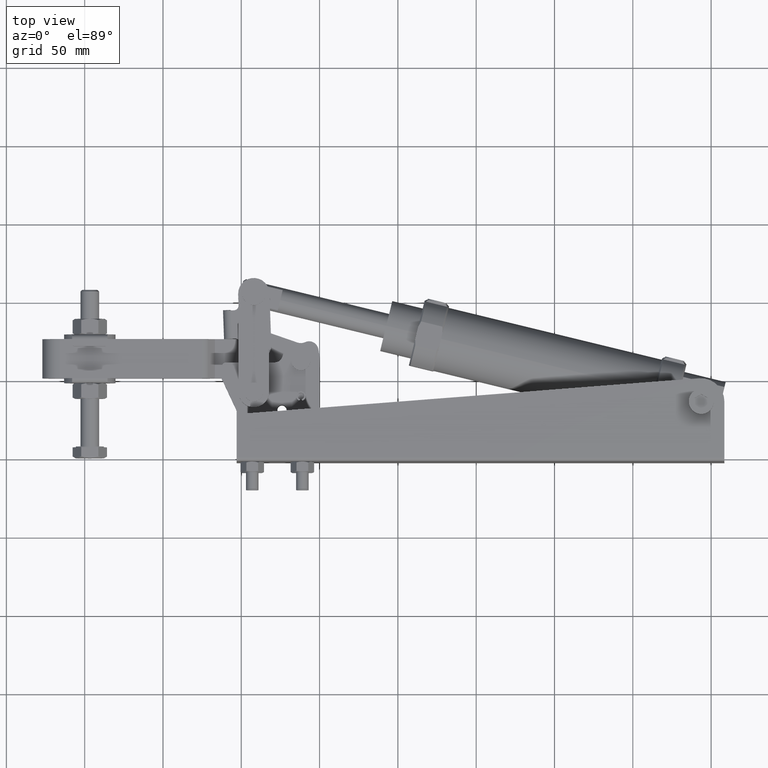
[diagram: clean part render]
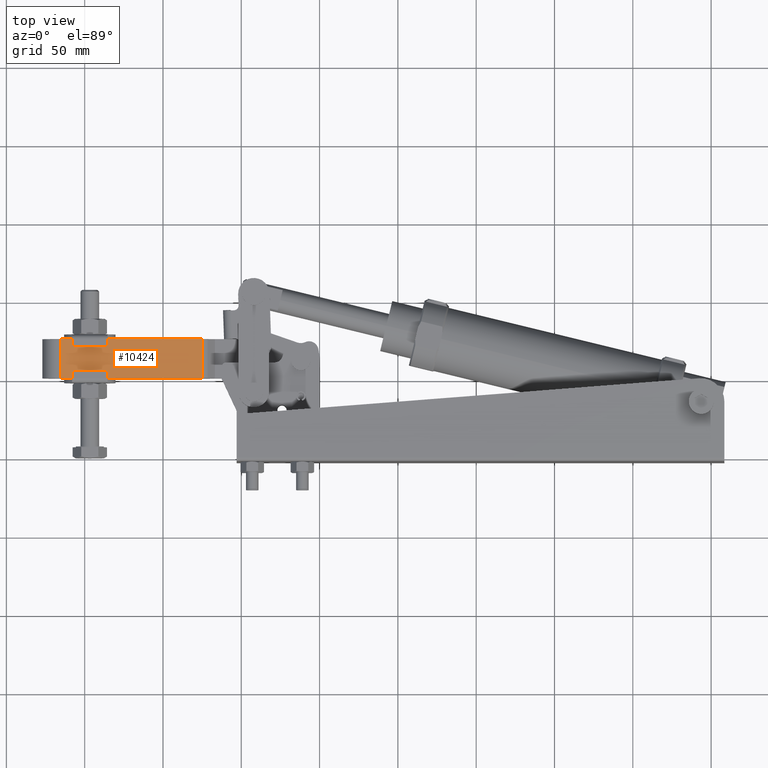
[diagram: same view with one face highlighted and labeled with its STEP entity id]
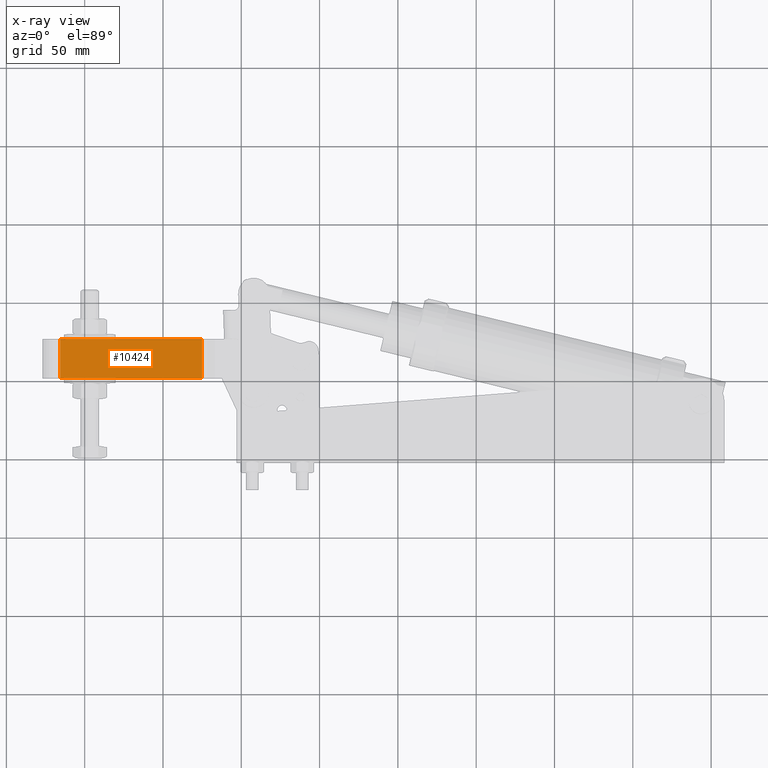
[diagram: x-ray of the same camera — body ghosted, the highlighted face saturated]
A machine part, top view. The second image highlights one B-rep face of the part: STEP entity #10424.
The next image is the same camera in x-ray: the body ghosted, the highlighted face saturated — about 0% of this face is hidden behind the body in this view.
In plain terms, the highlighted planar face has unit normal (0, 0, 1).
Its self-contained STEP definition (entity closure, byte-faithful):
#784 = ORIENTED_EDGE ( 'NONE', *, *, #6400, .F. ) ;
#1646 = VERTEX_POINT ( 'NONE', #23229 ) ;
#1776 = DIRECTION ( 'NONE',  ( 1.000000000000000000, 0.0000000000000000000, -1.495451272393799800E-016 ) ) ;
#2091 = EDGE_CURVE ( 'NONE', #9593, #23367, #4537, .T. ) ;
#3448 = DIRECTION ( 'NONE',  ( -1.000000000000000000, 0.0000000000000000000, 1.495451272393799800E-016 ) ) ;
#3763 = VECTOR ( 'NONE', #4330, 1000.000000000000000 ) ;
#4330 = DIRECTION ( 'NONE',  ( -1.000000000000000000, -0.0000000000000000000, -0.0000000000000000000 ) ) ;
#4537 = LINE ( 'NONE', #18104, #19175 ) ;
#5297 = CARTESIAN_POINT ( 'NONE',  ( -72.84999999999867300, 83.00000000000025600, 11.35000000000001600 ) ) ;
#5377 = VECTOR ( 'NONE', #17791, 1000.000000000000000 ) ;
#6400 = EDGE_CURVE ( 'NONE', #11003, #9593, #16310, .T. ) ;
#6407 = FACE_OUTER_BOUND ( 'NONE', #18759, .T. ) ;
#7285 = ORIENTED_EDGE ( 'NONE', *, *, #2091, .F. ) ;
#8088 = LINE ( 'NONE', #11761, #16130 ) ;
#8642 = LINE ( 'NONE', #9776, #3763 ) ;
#9593 = VERTEX_POINT ( 'NONE', #21402 ) ;
#9776 = CARTESIAN_POINT ( 'NONE',  ( -176.9999999999986900, 76.00000000000025600, 11.35000000000003000 ) ) ;
#10424 = ADVANCED_FACE ( 'NONE', ( #6407 ), #18195, .T. ) ;
#11003 = VERTEX_POINT ( 'NONE', #13191 ) ;
#11050 = ORIENTED_EDGE ( 'NONE', *, *, #20333, .T. ) ;
#11107 = EDGE_CURVE ( 'NONE', #1646, #23367, #8088, .T. ) ;
#11761 = CARTESIAN_POINT ( 'NONE',  ( -165.6499999999986400, 83.00000000000025600, 11.35000000000003000 ) ) ;
#11782 = CARTESIAN_POINT ( 'NONE',  ( -165.6499999999986400, 51.00000000000025600, 11.35000000000003000 ) ) ;
#12744 = DIRECTION ( 'NONE',  ( 1.495451272393799800E-016, -0.0000000000000000000, 1.000000000000000000 ) ) ;
#13191 = CARTESIAN_POINT ( 'NONE',  ( -75.00885629904233600, 76.00000000000025600, 11.35000000000003000 ) ) ;
#13407 = AXIS2_PLACEMENT_3D ( 'NONE', #5297, #12744, #1776 ) ;
#13606 = DIRECTION ( 'NONE',  ( -0.0000000000000000000, -1.000000000000000000, -0.0000000000000000000 ) ) ;
#14111 = ORIENTED_EDGE ( 'NONE', *, *, #11107, .T. ) ;
#15967 = CARTESIAN_POINT ( 'NONE',  ( -75.00885629904233600, 83.00000000000025600, 11.35000000000001600 ) ) ;
#16130 = VECTOR ( 'NONE', #13606, 1000.000000000000000 ) ;
#16310 = LINE ( 'NONE', #15967, #5377 ) ;
#17791 = DIRECTION ( 'NONE',  ( -0.0000000000000000000, -1.000000000000000000, -0.0000000000000000000 ) ) ;
#18104 = CARTESIAN_POINT ( 'NONE',  ( -72.84999999999867300, 51.00000000000025600, 11.35000000000001600 ) ) ;
#18195 = PLANE ( 'NONE',  #13407 ) ;
#18759 = EDGE_LOOP ( 'NONE', ( #11050, #14111, #7285, #784 ) ) ;
#19175 = VECTOR ( 'NONE', #3448, 1000.000000000000000 ) ;
#20333 = EDGE_CURVE ( 'NONE', #11003, #1646, #8642, .T. ) ;
#21402 = CARTESIAN_POINT ( 'NONE',  ( -75.00885629904233600, 51.00000000000025600, 11.35000000000001600 ) ) ;
#23229 = CARTESIAN_POINT ( 'NONE',  ( -165.6499999999986400, 76.00000000000025600, 11.35000000000003000 ) ) ;
#23367 = VERTEX_POINT ( 'NONE', #11782 ) ;